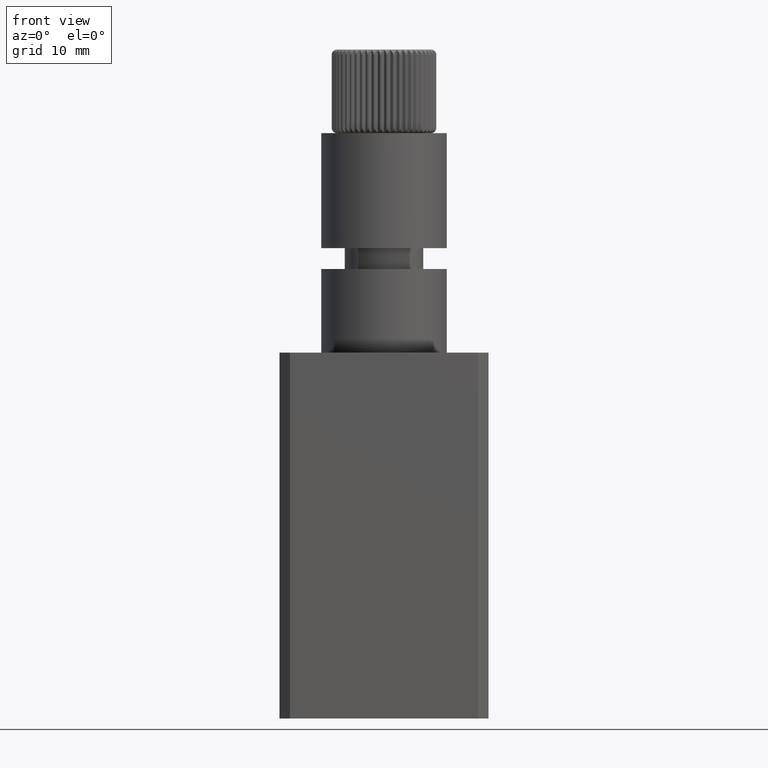
[diagram: clean part render]
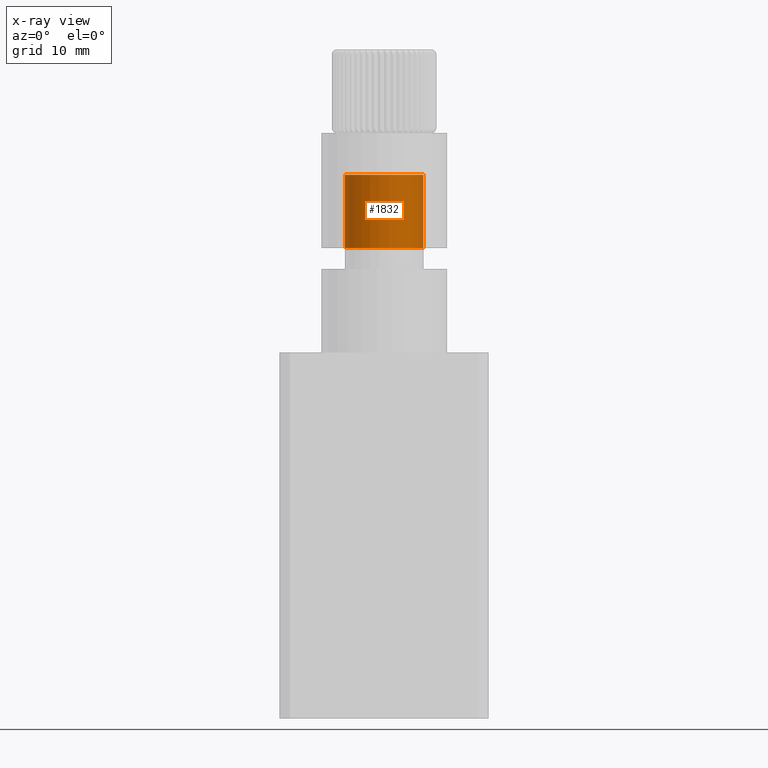
[diagram: x-ray — body ghosted, one internal face saturated and labeled with its STEP entity id]
A machine part, front view, then the same camera in x-ray: the body is ghosted and one INTERNAL B-rep face — a face not visible from any outside direction — is saturated and labeled: STEP entity #1832.
In plain terms, the highlighted cylindrical surface (partial cylindrical patch) has radius 3.75 mm, axis along (-0, -0, 1).
Its self-contained STEP definition (entity closure, byte-faithful):
#286 = ORIENTED_EDGE ( 'NONE', *, *, #6423, .T. ) ;
#292 = VERTEX_POINT ( 'NONE', #452 ) ;
#376 = VECTOR ( 'NONE', #439, 1000.000000000000000 ) ;
#439 = DIRECTION ( 'NONE',  ( -0.0000000000000000000, -0.0000000000000000000, 1.000000000000000000 ) ) ;
#452 = CARTESIAN_POINT ( 'NONE',  ( -3.750000000000000000, 4.592425496802574000E-016, 45.00000000000000700 ) ) ;
#588 = EDGE_CURVE ( 'NONE', #292, #9107, #10641, .T. ) ;
#816 = DIRECTION ( 'NONE',  ( 1.000000000000000000, 0.0000000000000000000, 0.0000000000000000000 ) ) ;
#1148 = ORIENTED_EDGE ( 'NONE', *, *, #588, .T. ) ;
#1456 = DIRECTION ( 'NONE',  ( -0.0000000000000000000, -0.0000000000000000000, 1.000000000000000000 ) ) ;
#1832 = ADVANCED_FACE ( 'NONE', ( #7163 ), #4395, .F. ) ;
#1930 = EDGE_LOOP ( 'NONE', ( #2398, #1148, #286, #5884 ) ) ;
#2179 = DIRECTION ( 'NONE',  ( 1.000000000000000000, 0.0000000000000000000, 0.0000000000000000000 ) ) ;
#2281 = LINE ( 'NONE', #6403, #2535 ) ;
#2398 = ORIENTED_EDGE ( 'NONE', *, *, #9736, .F. ) ;
#2530 = CARTESIAN_POINT ( 'NONE',  ( 0.0000000000000000000, 0.0000000000000000000, 45.00000000000000700 ) ) ;
#2535 = VECTOR ( 'NONE', #5438, 1000.000000000000000 ) ;
#2927 = AXIS2_PLACEMENT_3D ( 'NONE', #2530, #4966, #816 ) ;
#2969 = CARTESIAN_POINT ( 'NONE',  ( 0.0000000000000000000, 0.0000000000000000000, 52.08322956960369500 ) ) ;
#4035 = CIRCLE ( 'NONE', #2927, 3.750000000000000000 ) ;
#4395 = CYLINDRICAL_SURFACE ( 'NONE', #7596, 3.750000000000000000 ) ;
#4573 = VERTEX_POINT ( 'NONE', #4785 ) ;
#4785 = CARTESIAN_POINT ( 'NONE',  ( 3.750000000000000000, 0.0000000000000000000, 45.00000000000000700 ) ) ;
#4966 = DIRECTION ( 'NONE',  ( -0.0000000000000000000, -0.0000000000000000000, 1.000000000000000000 ) ) ;
#5438 = DIRECTION ( 'NONE',  ( -0.0000000000000000000, -0.0000000000000000000, 1.000000000000000000 ) ) ;
#5884 = ORIENTED_EDGE ( 'NONE', *, *, #5983, .F. ) ;
#5983 = EDGE_CURVE ( 'NONE', #4573, #6093, #2281, .T. ) ;
#6093 = VERTEX_POINT ( 'NONE', #8308 ) ;
#6370 = AXIS2_PLACEMENT_3D ( 'NONE', #9244, #9206, #8388 ) ;
#6403 = CARTESIAN_POINT ( 'NONE',  ( 3.750000000000000000, 0.0000000000000000000, 52.08322956960369500 ) ) ;
#6423 = EDGE_CURVE ( 'NONE', #9107, #6093, #8455, .T. ) ;
#7163 = FACE_OUTER_BOUND ( 'NONE', #1930, .T. ) ;
#7419 = CARTESIAN_POINT ( 'NONE',  ( -3.750000000000000000, 4.592425496802574000E-016, 52.00000000000000700 ) ) ;
#7596 = AXIS2_PLACEMENT_3D ( 'NONE', #2969, #1456, #2179 ) ;
#7844 = CARTESIAN_POINT ( 'NONE',  ( -3.750000000000000000, 4.592425496802574000E-016, 52.08322956960369500 ) ) ;
#8308 = CARTESIAN_POINT ( 'NONE',  ( 3.750000000000000000, 0.0000000000000000000, 52.00000000000000700 ) ) ;
#8388 = DIRECTION ( 'NONE',  ( 1.000000000000000000, 0.0000000000000000000, 0.0000000000000000000 ) ) ;
#8455 = CIRCLE ( 'NONE', #6370, 3.750000000000000000 ) ;
#9107 = VERTEX_POINT ( 'NONE', #7419 ) ;
#9206 = DIRECTION ( 'NONE',  ( -0.0000000000000000000, -0.0000000000000000000, 1.000000000000000000 ) ) ;
#9244 = CARTESIAN_POINT ( 'NONE',  ( 0.0000000000000000000, 0.0000000000000000000, 52.00000000000000700 ) ) ;
#9736 = EDGE_CURVE ( 'NONE', #292, #4573, #4035, .T. ) ;
#10641 = LINE ( 'NONE', #7844, #376 ) ;